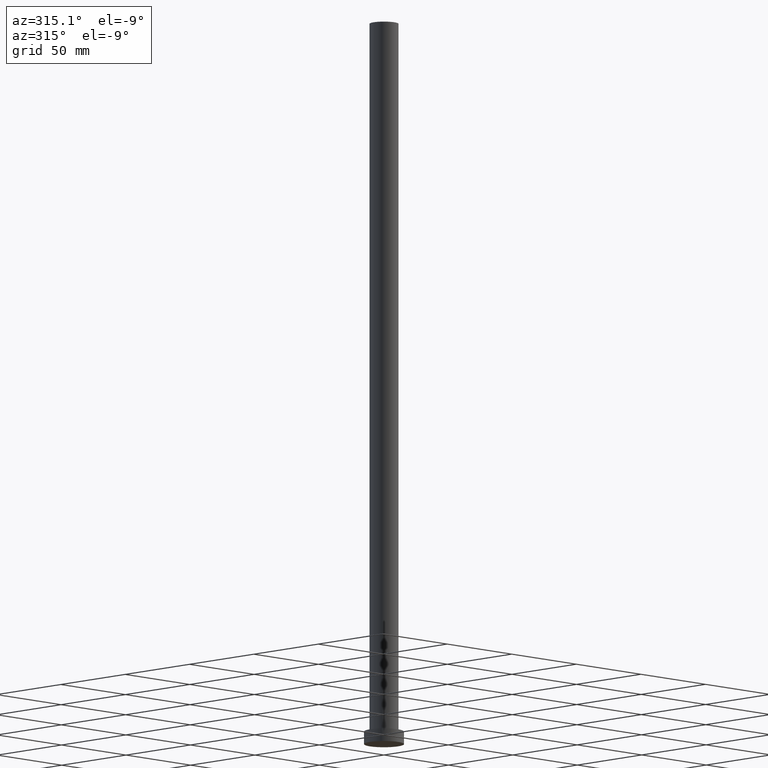
[diagram: clean part render]
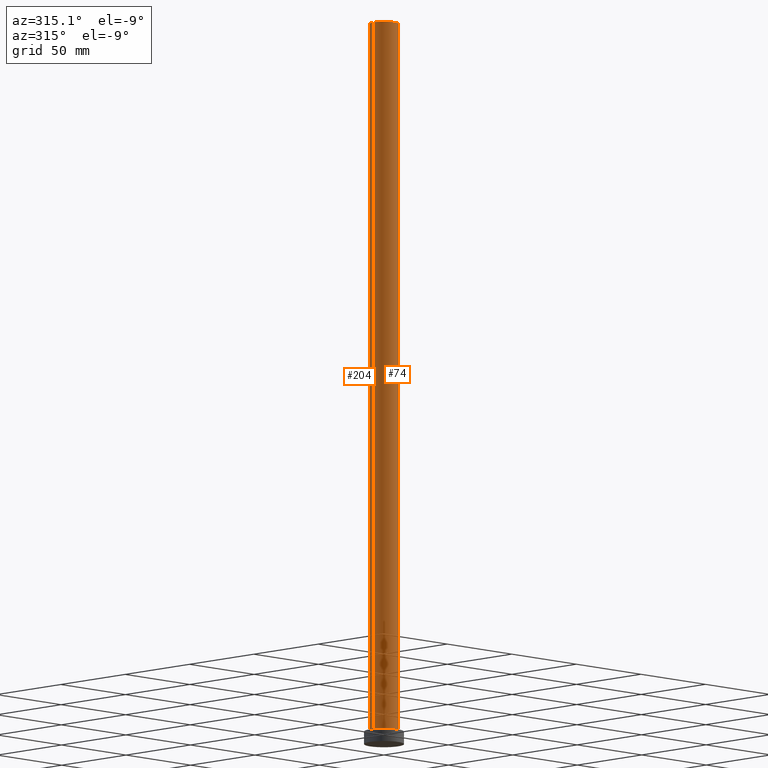
[diagram: same view with one multi-face feature highlighted, each face labeled with its STEP entity id]
A machine part, auxiliary view. The highlighted faces form ONE feature: a constant-radius fillet chain: 2 tangent blend faces with common blend radius 8 mm. The faces share edges in the B-rep.
Their STEP definitions:
[1] entity #204 (Cylinder):
#4 = CARTESIAN_POINT ( 'NONE',  ( 8.000000000000000000, 9.797174393178825657E-16, 400.0000000000000000 ) ) ;
#11 = EDGE_CURVE ( 'NONE', #113, #193, #190, .T. ) ;
#12 = VECTOR ( 'NONE', #157, 1000.000000000000000 ) ;
#16 = CARTESIAN_POINT ( 'NONE',  ( 0.000000000000000000, 0.000000000000000000, 400.0000000000000000 ) ) ;
#23 = CIRCLE ( 'NONE', #248, 8.000000000000000000 ) ;
#30 = VERTEX_POINT ( 'NONE', #119 ) ;
#44 = ORIENTED_EDGE ( 'NONE', *, *, #243, .T. ) ;
#67 = ORIENTED_EDGE ( 'NONE', *, *, #246, .F. ) ;
#75 = AXIS2_PLACEMENT_3D ( 'NONE', #16, #87, #237 ) ;
#87 = DIRECTION ( 'NONE',  ( -0.000000000000000000, -0.000000000000000000, -1.000000000000000000 ) ) ;
#95 = CARTESIAN_POINT ( 'NONE',  ( -8.000000000000000000, 0.000000000000000000, 7.000000000000000000 ) ) ;
#97 = VERTEX_POINT ( 'NONE', #95 ) ;
#111 = DIRECTION ( 'NONE',  ( 0.000000000000000000, 0.000000000000000000, 1.000000000000000000 ) ) ;
#113 = VERTEX_POINT ( 'NONE', #4 ) ;
#119 = CARTESIAN_POINT ( 'NONE',  ( 8.000000000000000000, 9.797174393178825657E-16, 7.000000000000000000 ) ) ;
#120 = EDGE_CURVE ( 'NONE', #30, #97, #23, .T. ) ;
#134 = CARTESIAN_POINT ( 'NONE',  ( -8.000000000000000000, 0.000000000000000000, 400.0000000000000000 ) ) ;
#135 = CYLINDRICAL_SURFACE ( 'NONE', #75, 8.000000000000000000 ) ;
#137 = CARTESIAN_POINT ( 'NONE',  ( 0.000000000000000000, 0.000000000000000000, 400.0000000000000000 ) ) ;
#139 = CARTESIAN_POINT ( 'NONE',  ( 8.000000000000000000, 9.797174393178825657E-16, 400.0000000000000000 ) ) ;
#146 = DIRECTION ( 'NONE',  ( 0.000000000000000000, 0.000000000000000000, 1.000000000000000000 ) ) ;
#157 = DIRECTION ( 'NONE',  ( -0.000000000000000000, -0.000000000000000000, -1.000000000000000000 ) ) ;
#162 = DIRECTION ( 'NONE',  ( 1.000000000000000000, 0.000000000000000000, 0.000000000000000000 ) ) ;
#164 = CARTESIAN_POINT ( 'NONE',  ( 0.000000000000000000, 0.000000000000000000, 7.000000000000000000 ) ) ;
#178 = AXIS2_PLACEMENT_3D ( 'NONE', #137, #111, #162 ) ;
#179 = VECTOR ( 'NONE', #219, 1000.000000000000000 ) ;
#182 = DIRECTION ( 'NONE',  ( 1.000000000000000000, 0.000000000000000000, 0.000000000000000000 ) ) ;
#190 = CIRCLE ( 'NONE', #178, 8.000000000000000000 ) ;
#193 = VERTEX_POINT ( 'NONE', #134 ) ;
#199 = FACE_OUTER_BOUND ( 'NONE', #224, .T. ) ;
#201 = LINE ( 'NONE', #255, #12 ) ;
#204 = ADVANCED_FACE ( 'NONE', ( #199 ), #135, .T. ) ;
#213 = ORIENTED_EDGE ( 'NONE', *, *, #11, .F. ) ;
#217 = LINE ( 'NONE', #139, #179 ) ;
#219 = DIRECTION ( 'NONE',  ( -0.000000000000000000, -0.000000000000000000, -1.000000000000000000 ) ) ;
#224 = EDGE_LOOP ( 'NONE', ( #213, #44, #249, #67 ) ) ;
#237 = DIRECTION ( 'NONE',  ( -1.000000000000000000, 0.000000000000000000, 0.000000000000000000 ) ) ;
#243 = EDGE_CURVE ( 'NONE', #113, #30, #217, .T. ) ;
#246 = EDGE_CURVE ( 'NONE', #193, #97, #201, .T. ) ;
#248 = AXIS2_PLACEMENT_3D ( 'NONE', #164, #146, #182 ) ;
#249 = ORIENTED_EDGE ( 'NONE', *, *, #120, .T. ) ;
#255 = CARTESIAN_POINT ( 'NONE',  ( -8.000000000000000000, 0.000000000000000000, 400.0000000000000000 ) ) ;
[2] entity #74 (Cylinder):
#4 = CARTESIAN_POINT ( 'NONE',  ( 8.000000000000000000, 9.797174393178825657E-16, 400.0000000000000000 ) ) ;
#12 = VECTOR ( 'NONE', #157, 1000.000000000000000 ) ;
#22 = ORIENTED_EDGE ( 'NONE', *, *, #246, .T. ) ;
#30 = VERTEX_POINT ( 'NONE', #119 ) ;
#34 = AXIS2_PLACEMENT_3D ( 'NONE', #55, #133, #110 ) ;
#47 = DIRECTION ( 'NONE',  ( 1.000000000000000000, 0.000000000000000000, 0.000000000000000000 ) ) ;
#55 = CARTESIAN_POINT ( 'NONE',  ( 0.000000000000000000, 0.000000000000000000, 7.000000000000000000 ) ) ;
#57 = AXIS2_PLACEMENT_3D ( 'NONE', #208, #141, #188 ) ;
#74 = ADVANCED_FACE ( 'NONE', ( #202 ), #226, .T. ) ;
#81 = CARTESIAN_POINT ( 'NONE',  ( 0.000000000000000000, 0.000000000000000000, 400.0000000000000000 ) ) ;
#92 = ORIENTED_EDGE ( 'NONE', *, *, #243, .F. ) ;
#95 = CARTESIAN_POINT ( 'NONE',  ( -8.000000000000000000, 0.000000000000000000, 7.000000000000000000 ) ) ;
#97 = VERTEX_POINT ( 'NONE', #95 ) ;
#104 = CIRCLE ( 'NONE', #165, 8.000000000000000000 ) ;
#110 = DIRECTION ( 'NONE',  ( 1.000000000000000000, 0.000000000000000000, 0.000000000000000000 ) ) ;
#113 = VERTEX_POINT ( 'NONE', #4 ) ;
#119 = CARTESIAN_POINT ( 'NONE',  ( 8.000000000000000000, 9.797174393178825657E-16, 7.000000000000000000 ) ) ;
#122 = CIRCLE ( 'NONE', #34, 8.000000000000000000 ) ;
#133 = DIRECTION ( 'NONE',  ( 0.000000000000000000, 0.000000000000000000, 1.000000000000000000 ) ) ;
#134 = CARTESIAN_POINT ( 'NONE',  ( -8.000000000000000000, 0.000000000000000000, 400.0000000000000000 ) ) ;
#139 = CARTESIAN_POINT ( 'NONE',  ( 8.000000000000000000, 9.797174393178825657E-16, 400.0000000000000000 ) ) ;
#141 = DIRECTION ( 'NONE',  ( -0.000000000000000000, -0.000000000000000000, -1.000000000000000000 ) ) ;
#150 = EDGE_CURVE ( 'NONE', #193, #113, #104, .T. ) ;
#157 = DIRECTION ( 'NONE',  ( -0.000000000000000000, -0.000000000000000000, -1.000000000000000000 ) ) ;
#165 = AXIS2_PLACEMENT_3D ( 'NONE', #81, #169, #47 ) ;
#169 = DIRECTION ( 'NONE',  ( 0.000000000000000000, 0.000000000000000000, 1.000000000000000000 ) ) ;
#179 = VECTOR ( 'NONE', #219, 1000.000000000000000 ) ;
#188 = DIRECTION ( 'NONE',  ( -1.000000000000000000, 0.000000000000000000, 0.000000000000000000 ) ) ;
#193 = VERTEX_POINT ( 'NONE', #134 ) ;
#195 = EDGE_LOOP ( 'NONE', ( #92, #215, #22, #197 ) ) ;
#197 = ORIENTED_EDGE ( 'NONE', *, *, #228, .T. ) ;
#201 = LINE ( 'NONE', #255, #12 ) ;
#202 = FACE_OUTER_BOUND ( 'NONE', #195, .T. ) ;
#208 = CARTESIAN_POINT ( 'NONE',  ( 0.000000000000000000, 0.000000000000000000, 400.0000000000000000 ) ) ;
#215 = ORIENTED_EDGE ( 'NONE', *, *, #150, .F. ) ;
#217 = LINE ( 'NONE', #139, #179 ) ;
#219 = DIRECTION ( 'NONE',  ( -0.000000000000000000, -0.000000000000000000, -1.000000000000000000 ) ) ;
#226 = CYLINDRICAL_SURFACE ( 'NONE', #57, 8.000000000000000000 ) ;
#228 = EDGE_CURVE ( 'NONE', #97, #30, #122, .T. ) ;
#243 = EDGE_CURVE ( 'NONE', #113, #30, #217, .T. ) ;
#246 = EDGE_CURVE ( 'NONE', #193, #97, #201, .T. ) ;
#255 = CARTESIAN_POINT ( 'NONE',  ( -8.000000000000000000, 0.000000000000000000, 400.0000000000000000 ) ) ;